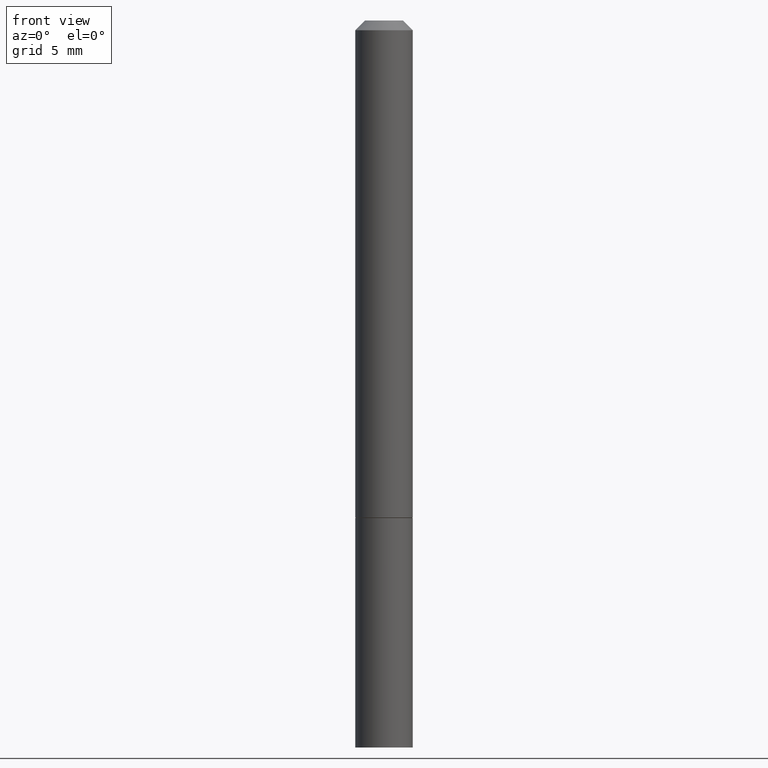
[diagram: clean part render]
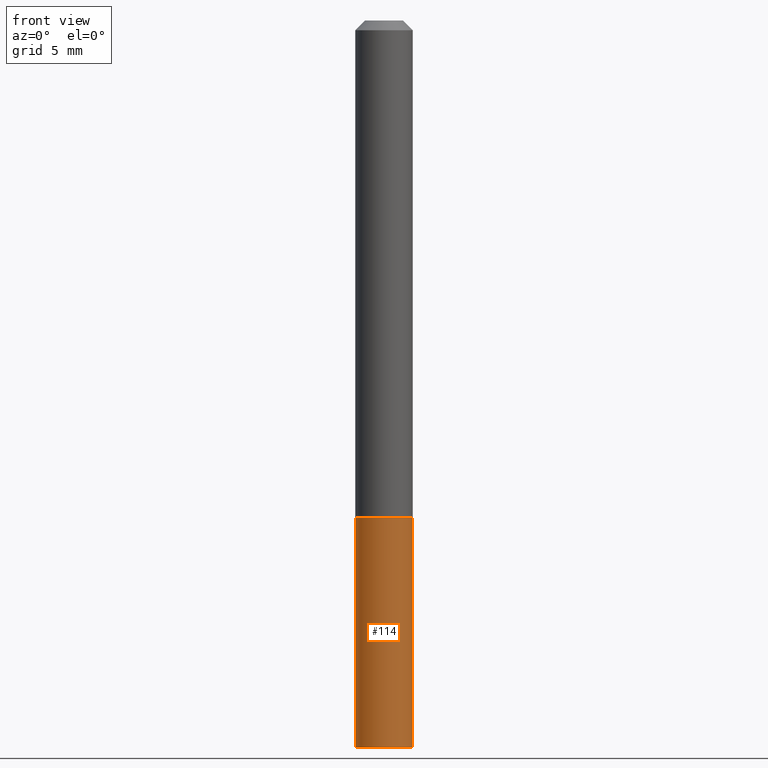
[diagram: same view with one face highlighted and labeled with its STEP entity id]
A machine part, front view. The second image highlights one B-rep face of the part: STEP entity #114.
In plain terms, the highlighted cylindrical surface (edge-blend (fillet) strip) has radius 1.4999 mm, axis along (-0, 0, 1).
Its self-contained STEP definition (entity closure, byte-faithful):
#17 = CARTESIAN_POINT ( 'NONE',  ( 2.503426416891723784E-29, -3.574229446573727613E-15, -1.023699999999999832 ) ) ;
#32 = ORIENTED_EDGE ( 'NONE', *, *, #54, .T. ) ;
#39 = LINE ( 'NONE', #269, #84 ) ;
#43 = CIRCLE ( 'NONE', #302, 0.05905000000000001914 ) ;
#44 = CYLINDRICAL_SURFACE ( 'NONE', #355, 0.05905000000000001914 ) ;
#47 = DIRECTION ( 'NONE',  ( -2.445468806185136597E-29, 3.491481338843145583E-15, 1.000000000000000000 ) ) ;
#53 = ORIENTED_EDGE ( 'NONE', *, *, #206, .F. ) ;
#54 = EDGE_CURVE ( 'NONE', #345, #305, #165, .T. ) ;
#57 = CARTESIAN_POINT ( 'NONE',  ( -0.05905000000000001914, -3.979341853342139538E-15, -1.496099999999999985 ) ) ;
#62 = ORIENTED_EDGE ( 'NONE', *, *, #189, .F. ) ;
#74 = LINE ( 'NONE', #188, #280 ) ;
#82 = VERTEX_POINT ( 'NONE', #180 ) ;
#84 = VECTOR ( 'NONE', #156, 39.37007874015748143 ) ;
#92 = DIRECTION ( 'NONE',  ( -2.445468806185136597E-29, 3.491481338843145583E-15, 1.000000000000000000 ) ) ;
#103 = CARTESIAN_POINT ( 'NONE',  ( 0.05905000000000001914, -3.986573392691101744E-15, -1.023699999999999832 ) ) ;
#104 = AXIS2_PLACEMENT_3D ( 'NONE', #122, #241, #243 ) ;
#114 = ADVANCED_FACE ( 'NONE', ( #215 ), #44, .T. ) ;
#122 = CARTESIAN_POINT ( 'NONE',  ( 3.658665880933582389E-29, -5.223605231043229660E-15, -1.496099999999999985 ) ) ;
#144 = EDGE_LOOP ( 'NONE', ( #53, #32, #259, #62 ) ) ;
#156 = DIRECTION ( 'NONE',  ( -2.445468806185136877E-29, 3.491481338843145188E-15, 1.000000000000000000 ) ) ;
#161 = EDGE_CURVE ( 'NONE', #305, #291, #74, .T. ) ;
#165 = CIRCLE ( 'NONE', #104, 0.05905000000000001914 ) ;
#176 = DIRECTION ( 'NONE',  ( 1.000000000000000000, -6.982962677686262766E-15, 0.000000000000000000 ) ) ;
#180 = CARTESIAN_POINT ( 'NONE',  ( -0.05905000000000001914, -3.979341853342139538E-15, -1.023699999999999832 ) ) ;
#188 = CARTESIAN_POINT ( 'NONE',  ( 0.05905000000000001914, -4.123439461173741806E-16, 2.879382386107500921E-30 ) ) ;
#189 = EDGE_CURVE ( 'NONE', #82, #291, #43, .T. ) ;
#206 = EDGE_CURVE ( 'NONE', #345, #82, #39, .T. ) ;
#215 = FACE_OUTER_BOUND ( 'NONE', #144, .T. ) ;
#241 = DIRECTION ( 'NONE',  ( -2.445468806185136597E-29, 3.491481338843145583E-15, 1.000000000000000000 ) ) ;
#243 = DIRECTION ( 'NONE',  ( 1.000000000000000000, -6.982962677686270655E-15, 0.000000000000000000 ) ) ;
#259 = ORIENTED_EDGE ( 'NONE', *, *, #161, .T. ) ;
#269 = CARTESIAN_POINT ( 'NONE',  ( -0.05905000000000001914, 4.195754854663392958E-16, -2.904631170795522943E-30 ) ) ;
#271 = CARTESIAN_POINT ( 'NONE',  ( 0.000000000000000000, 0.000000000000000000, 0.000000000000000000 ) ) ;
#280 = VECTOR ( 'NONE', #325, 39.37007874015748143 ) ;
#291 = VERTEX_POINT ( 'NONE', #103 ) ;
#302 = AXIS2_PLACEMENT_3D ( 'NONE', #17, #47, #176 ) ;
#305 = VERTEX_POINT ( 'NONE', #366 ) ;
#325 = DIRECTION ( 'NONE',  ( -2.445468806185136877E-29, 3.491481338843145188E-15, 1.000000000000000000 ) ) ;
#328 = DIRECTION ( 'NONE',  ( 1.000000000000000000, -6.982962677686266711E-15, 4.876176775795935793E-29 ) ) ;
#345 = VERTEX_POINT ( 'NONE', #57 ) ;
#355 = AXIS2_PLACEMENT_3D ( 'NONE', #271, #92, #328 ) ;
#366 = CARTESIAN_POINT ( 'NONE',  ( 0.05905000000000001914, -5.635949177160603791E-15, -1.496099999999999985 ) ) ;